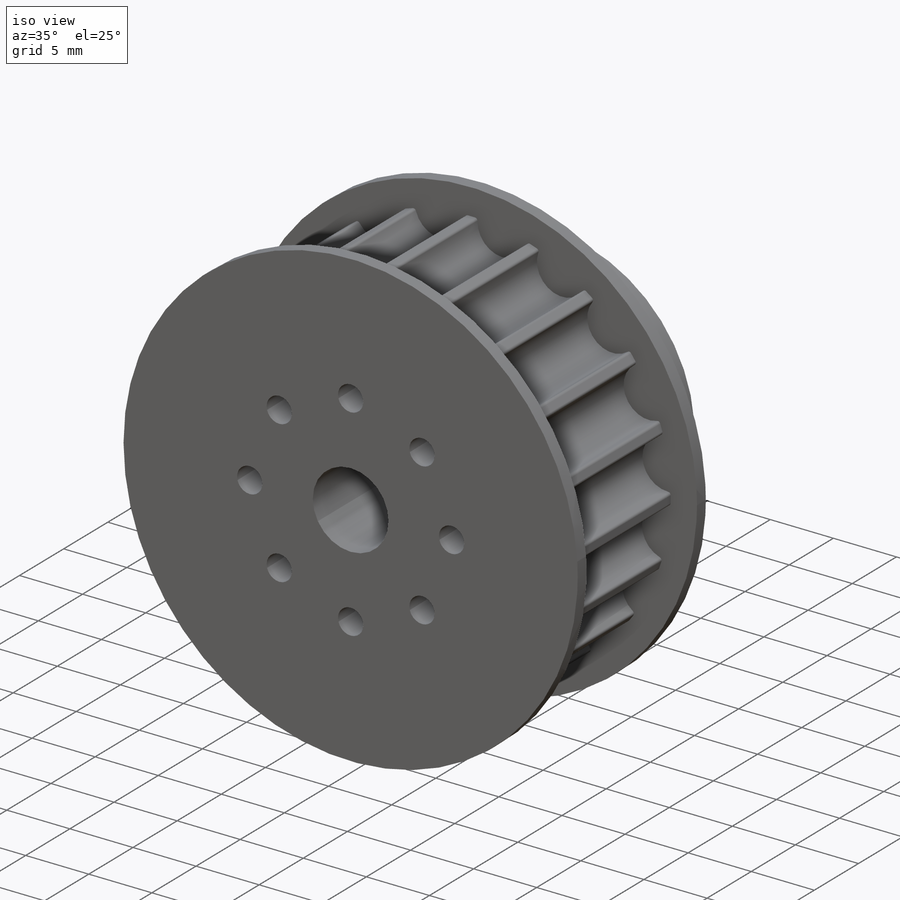
[diagram: iso view]
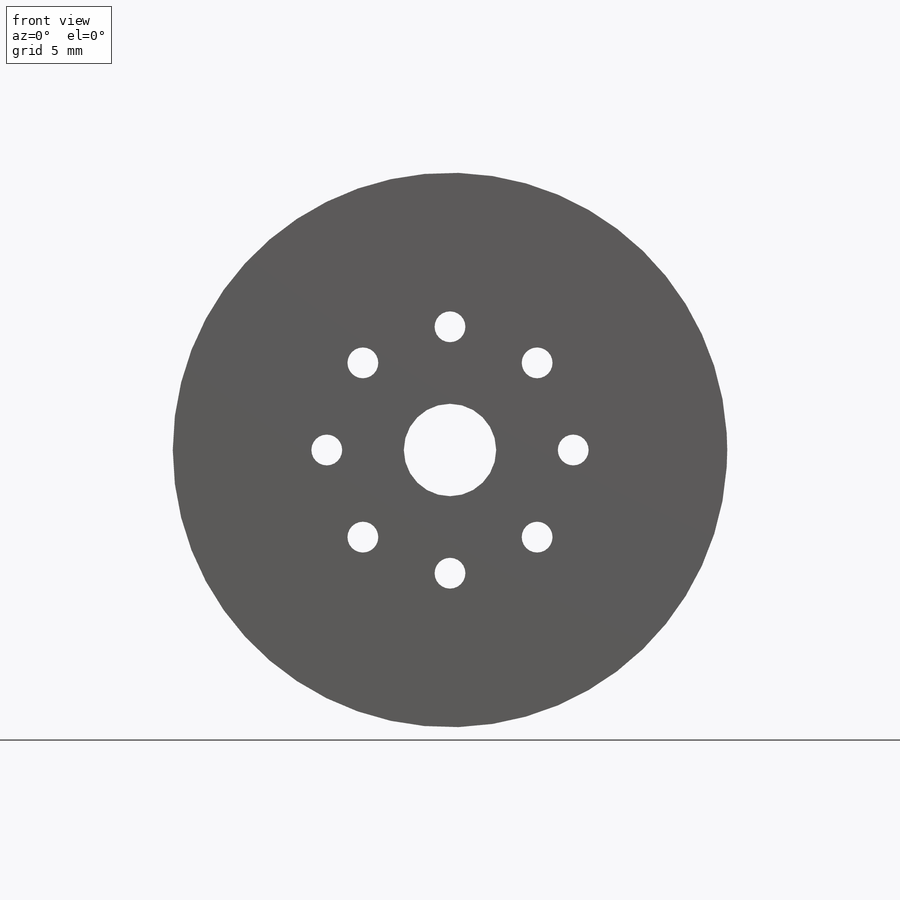
[diagram: front view]
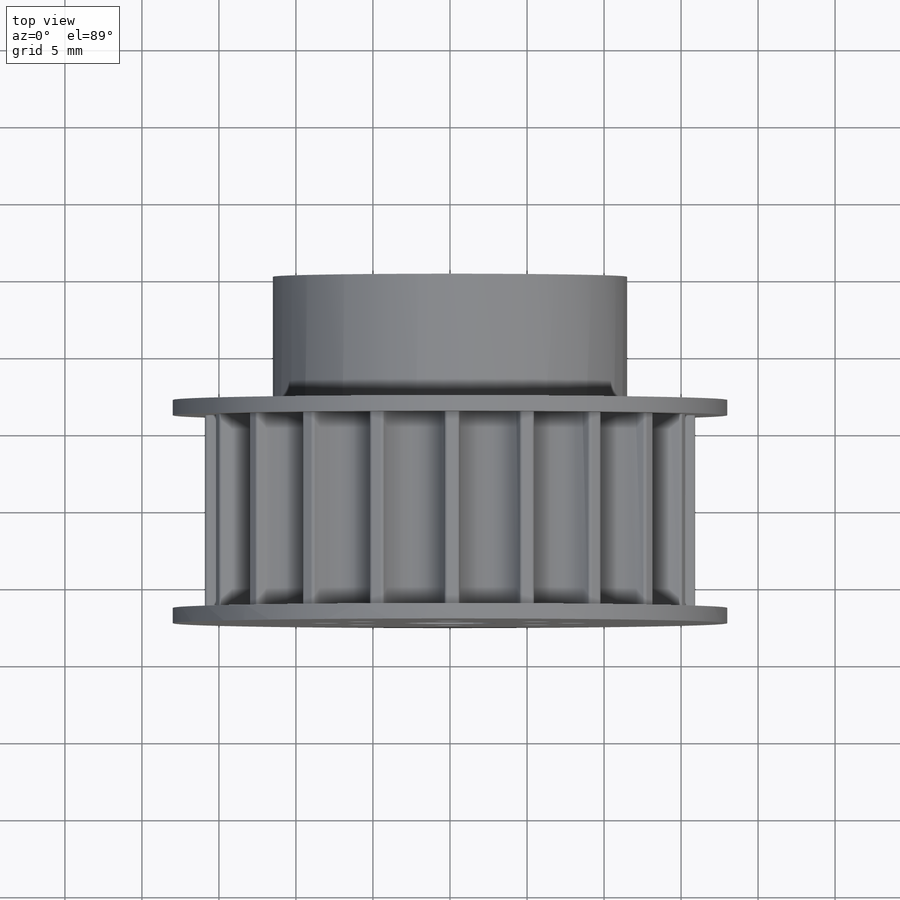
[diagram: top view]
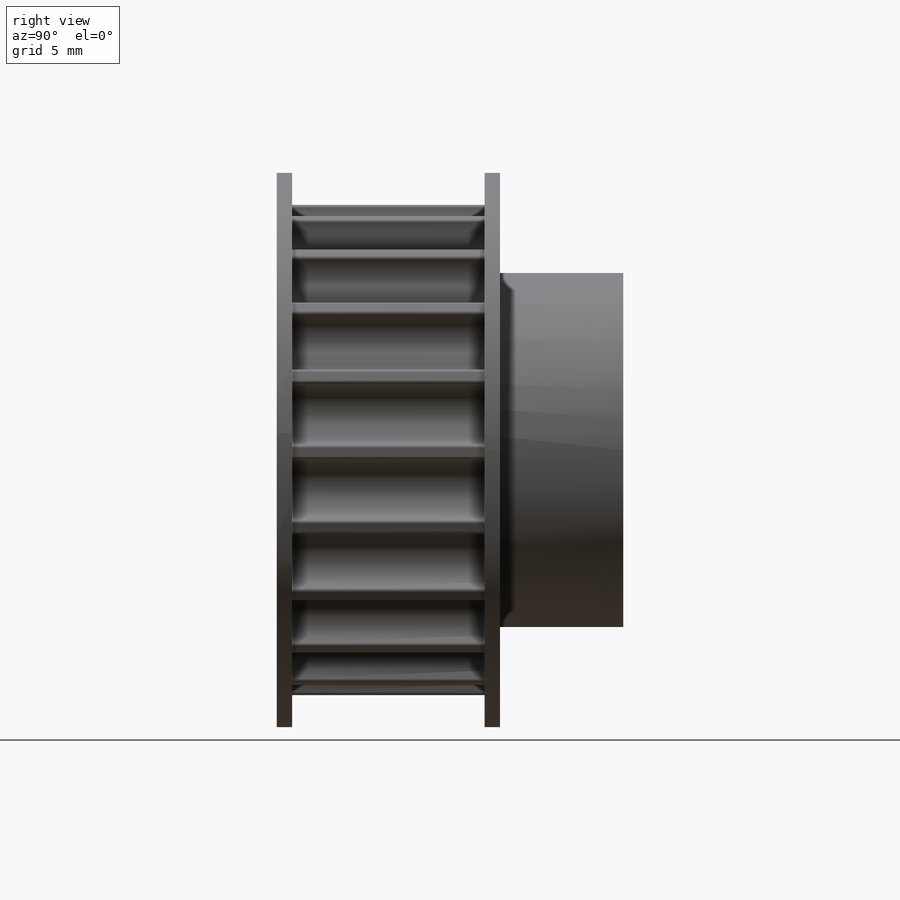
[diagram: right view]
SOLIDWORKS PART (.sldprt)
format: sldprt  version: not decoded by parser v0  size: 437,760 bytes
history: native  units: mm
features: sketch x7, extrude x5, plane x3, pattern_circular x2, cut_extrude x2, material x1, fillet x1 (+10 scaffold rows collapsed)
feature tree (31):
  scaffold x10  (default folders/planes/origin — collapsed)
  material  "Matériau <non spécifié>"
  plane  "Plan de face"
  plane  "Plan de dessus"
  plane  "Plan de droite"
  sketch  "Esquisse1"  dims[D1=23.0mm]
  extrude  "Boss.-Extru.1"  Depth=8mm
  sketch  "Esquisse2"  dims[D1=36.0mm]
  extrude  "Boss.-Extru.2"  Depth=1mm
  sketch  "Esquisse3"  dims[c1.D1=30.69mm c1.D2=31.83mm c2.D1=~1.425836mm c2.D3=30.69mm c2.D5=~26.104684mm c3.D1=4.0mm c3.D3=2.06mm c3.D4=0.5mm c3.D5=3.0mm c3.D6=~2.059927mm c4.D4=0.5mm c4.D5=0.5mm]
  extrude  "Boss.-Extru.3"  Depth=12.5mm
  pattern_circular  "Répétition circulaire1"  Count=20 Angle=360deg
  fillet  "Congé1"  Radius=0.2mm
  sketch  "Esquisse7"
  extrude  "Boss.-Extru.5"  Depth=12.5mm
  sketch  "Esquisse8"  dims[D1=36.0mm]
  extrude  "Boss.-Extru.6"  Depth=1mm
  sketch  "Esquisse9"  dims[D1=6.0mm]
  cut_extrude  "Enlèv. mat.-Extru.1"  [1 undecoded]
  sketch  "Esquisse10"  dims[c1.D1=~2.64218mm c1.D2=2.0mm c2.D1=8.0mm]
  cut_extrude  "Enlèv. mat.-Extru.2"  [1 undecoded]
  pattern_circular  "Répétition circulaire2"  Count=8 Angle=360deg
decode coverage: 14 of 17 modeling features carry decoded parameters
note: ~ marks probable driven/reference dimensions
note: 2 parameter values undecoded
note: suppression state not decoded; provenance and decode notes live in map.json
